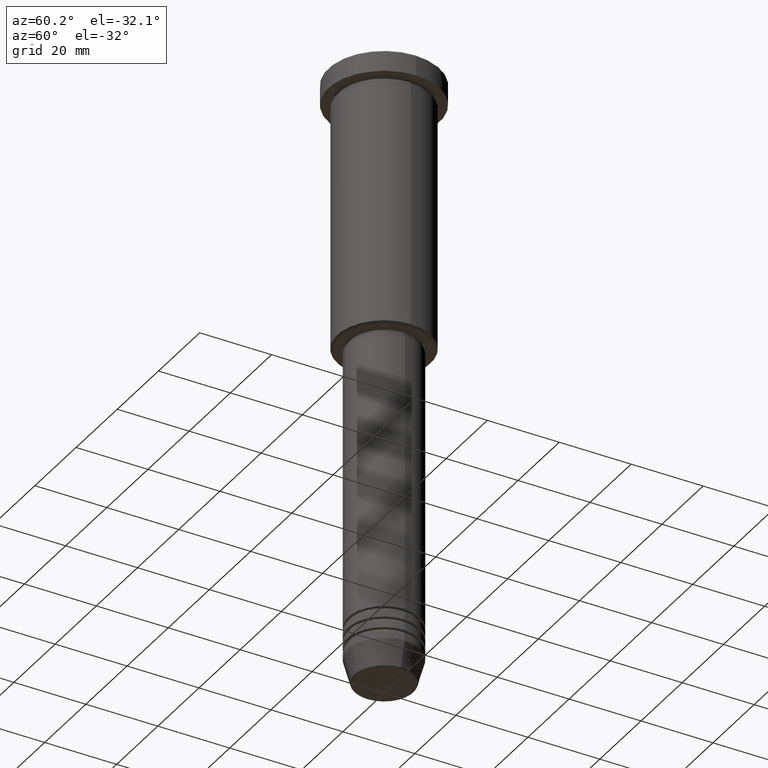
[diagram: clean part render]
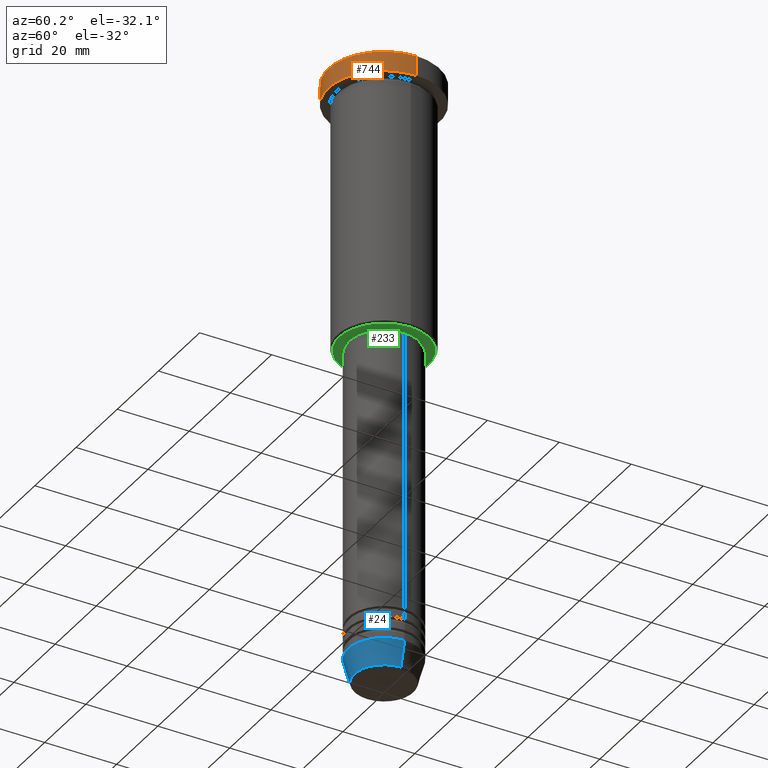
[diagram: same view with three faces highlighted in distinct colors, each labeled with its STEP entity id]
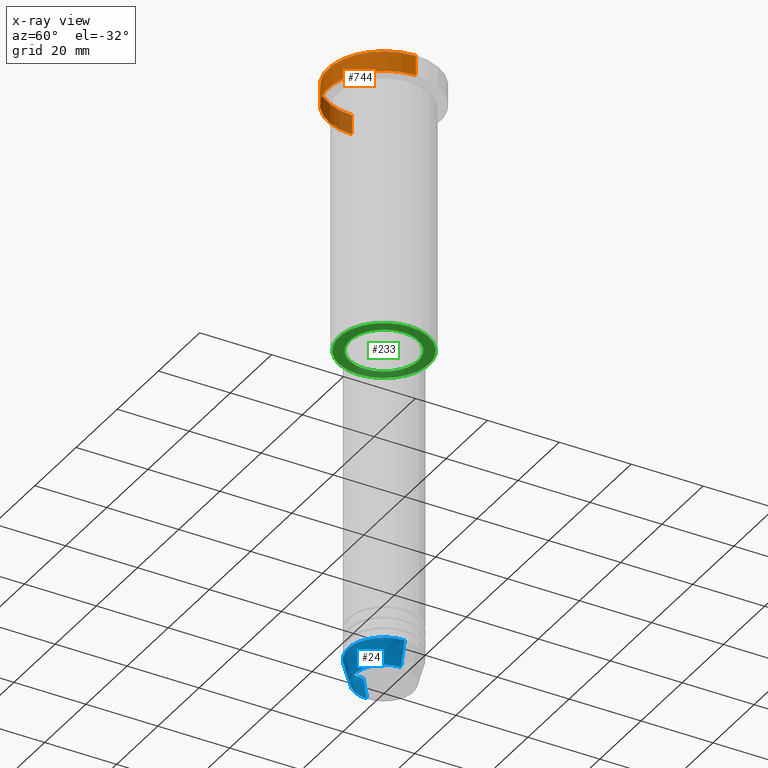
[diagram: x-ray of the same camera — body ghosted, the three highlighted faces saturated]
A machine part, auxiliary view with three faces highlighted in distinct colors.
The next image is the same camera in x-ray (body ghosted, the three faces saturated) — at least one of them is partly hidden behind the body in this view.
Their STEP definitions:

[orange] entity #744 — the highlighted cylindrical surface (partial cylindrical patch) has radius 15.5 mm, axis along (-0, -0, 1).
#4 = ORIENTED_EDGE ( 'NONE', *, *, #17, .T. ) ;
#17 = EDGE_CURVE ( 'NONE', #898, #645, #658, .T. ) ;
#19 = LINE ( 'NONE', #670, #857 ) ;
#53 = AXIS2_PLACEMENT_3D ( 'NONE', #203, #1021, #747 ) ;
#70 = CARTESIAN_POINT ( 'NONE',  ( -15.50000000000000000, 1.898202538678397557E-15, -5.999999999999995559 ) ) ;
#88 = FACE_OUTER_BOUND ( 'NONE', #759, .T. ) ;
#203 = CARTESIAN_POINT ( 'NONE',  ( 0.000000000000000000, 0.000000000000000000, -0.5000000000000125455 ) ) ;
#268 = DIRECTION ( 'NONE',  ( 1.000000000000000000, 0.000000000000000000, 0.000000000000000000 ) ) ;
#289 = ORIENTED_EDGE ( 'NONE', *, *, #860, .F. ) ;
#364 = VECTOR ( 'NONE', #667, 1000.000000000000000 ) ;
#494 = DIRECTION ( 'NONE',  ( -0.000000000000000000, -0.000000000000000000, 1.000000000000000000 ) ) ;
#560 = CARTESIAN_POINT ( 'NONE',  ( 0.000000000000000000, 0.000000000000000000, 0.000000000000000000 ) ) ;
#567 = AXIS2_PLACEMENT_3D ( 'NONE', #1025, #1111, #268 ) ;
#597 = AXIS2_PLACEMENT_3D ( 'NONE', #560, #838, #652 ) ;
#645 = VERTEX_POINT ( 'NONE', #718 ) ;
#652 = DIRECTION ( 'NONE',  ( 1.000000000000000000, 0.000000000000000000, 0.000000000000000000 ) ) ;
#654 = VERTEX_POINT ( 'NONE', #1153 ) ;
#658 = LINE ( 'NONE', #937, #364 ) ;
#667 = DIRECTION ( 'NONE',  ( -0.000000000000000000, -0.000000000000000000, 1.000000000000000000 ) ) ;
#670 = CARTESIAN_POINT ( 'NONE',  ( -15.50000000000000000, 1.898202538678397557E-15, 0.000000000000000000 ) ) ;
#714 = ORIENTED_EDGE ( 'NONE', *, *, #787, .T. ) ;
#718 = CARTESIAN_POINT ( 'NONE',  ( 15.50000000000000000, 0.000000000000000000, -0.5000000000000125455 ) ) ;
#727 = EDGE_CURVE ( 'NONE', #1018, #898, #781, .T. ) ;
#744 = ADVANCED_FACE ( 'NONE', ( #88 ), #753, .T. ) ;
#747 = DIRECTION ( 'NONE',  ( 1.000000000000000000, 0.000000000000000000, 0.000000000000000000 ) ) ;
#753 = CYLINDRICAL_SURFACE ( 'NONE', #597, 15.50000000000000000 ) ;
#759 = EDGE_LOOP ( 'NONE', ( #289, #955, #4, #714 ) ) ;
#781 = CIRCLE ( 'NONE', #567, 15.50000000000000000 ) ;
#787 = EDGE_CURVE ( 'NONE', #645, #654, #1052, .T. ) ;
#838 = DIRECTION ( 'NONE',  ( -0.000000000000000000, -0.000000000000000000, 1.000000000000000000 ) ) ;
#857 = VECTOR ( 'NONE', #494, 1000.000000000000000 ) ;
#860 = EDGE_CURVE ( 'NONE', #1018, #654, #19, .T. ) ;
#898 = VERTEX_POINT ( 'NONE', #949 ) ;
#937 = CARTESIAN_POINT ( 'NONE',  ( 15.50000000000000000, 0.000000000000000000, 0.000000000000000000 ) ) ;
#949 = CARTESIAN_POINT ( 'NONE',  ( 15.50000000000000000, 0.000000000000000000, -5.999999999999995559 ) ) ;
#955 = ORIENTED_EDGE ( 'NONE', *, *, #727, .T. ) ;
#1018 = VERTEX_POINT ( 'NONE', #70 ) ;
#1021 = DIRECTION ( 'NONE',  ( 0.000000000000000000, 0.000000000000000000, -1.000000000000000000 ) ) ;
#1025 = CARTESIAN_POINT ( 'NONE',  ( 0.000000000000000000, 0.000000000000000000, -5.999999999999995559 ) ) ;
#1052 = CIRCLE ( 'NONE', #53, 15.50000000000000000 ) ;
#1111 = DIRECTION ( 'NONE',  ( -0.000000000000000000, -0.000000000000000000, 1.000000000000000000 ) ) ;
#1153 = CARTESIAN_POINT ( 'NONE',  ( -15.50000000000000000, 1.898202538678397557E-15, -0.5000000000000125455 ) ) ;

[blue] entity #24 — the highlighted conical surface has half-angle 15 deg.
#24 = ADVANCED_FACE ( 'NONE', ( #206 ), #634, .T. ) ;
#107 = AXIS2_PLACEMENT_3D ( 'NONE', #850, #386, #761 ) ;
#111 = AXIS2_PLACEMENT_3D ( 'NONE', #635, #545, #334 ) ;
#149 = CIRCLE ( 'NONE', #111, 10.00000000000000000 ) ;
#154 = EDGE_LOOP ( 'NONE', ( #1029, #602, #394, #907 ) ) ;
#206 = FACE_OUTER_BOUND ( 'NONE', #154, .T. ) ;
#300 = CIRCLE ( 'NONE', #510, 8.223655072137198374 ) ;
#334 = DIRECTION ( 'NONE',  ( 1.000000000000000000, 0.000000000000000000, 0.000000000000000000 ) ) ;
#336 = LINE ( 'NONE', #546, #856 ) ;
#386 = DIRECTION ( 'NONE',  ( -0.000000000000000000, -0.000000000000000000, 1.000000000000000000 ) ) ;
#394 = ORIENTED_EDGE ( 'NONE', *, *, #570, .T. ) ;
#395 = VERTEX_POINT ( 'NONE', #768 ) ;
#446 = DIRECTION ( 'NONE',  ( -0.000000000000000000, -0.000000000000000000, 1.000000000000000000 ) ) ;
#510 = AXIS2_PLACEMENT_3D ( 'NONE', #726, #446, #975 ) ;
#527 = DIRECTION ( 'NONE',  ( 0.2588190451025213501, 0.000000000000000000, 0.9659258262890680902 ) ) ;
#545 = DIRECTION ( 'NONE',  ( -0.000000000000000000, -0.000000000000000000, 1.000000000000000000 ) ) ;
#546 = CARTESIAN_POINT ( 'NONE',  ( 10.00000000000000000, 0.000000000000000000, -164.0000000000000000 ) ) ;
#570 = EDGE_CURVE ( 'NONE', #1112, #863, #336, .T. ) ;
#602 = ORIENTED_EDGE ( 'NONE', *, *, #611, .T. ) ;
#607 = VERTEX_POINT ( 'NONE', #1002 ) ;
#611 = EDGE_CURVE ( 'NONE', #395, #1112, #300, .T. ) ;
#634 = CONICAL_SURFACE ( 'NONE', #107, 10.00000000000000000, 0.2617993877991500740 ) ;
#635 = CARTESIAN_POINT ( 'NONE',  ( 0.000000000000000000, 0.000000000000000000, -164.0000000000000000 ) ) ;
#725 = CARTESIAN_POINT ( 'NONE',  ( 8.223655072137198374, 0.000000000000000000, -170.6294095225512422 ) ) ;
#726 = CARTESIAN_POINT ( 'NONE',  ( 0.000000000000000000, 0.000000000000000000, -170.6294095225512422 ) ) ;
#761 = DIRECTION ( 'NONE',  ( 1.000000000000000000, 0.000000000000000000, 0.000000000000000000 ) ) ;
#768 = CARTESIAN_POINT ( 'NONE',  ( -8.223655072137198374, 1.115877042642912448E-15, -170.6294095225512422 ) ) ;
#850 = CARTESIAN_POINT ( 'NONE',  ( 0.000000000000000000, 0.000000000000000000, -164.0000000000000000 ) ) ;
#856 = VECTOR ( 'NONE', #527, 1000.000000000000000 ) ;
#859 = CARTESIAN_POINT ( 'NONE',  ( 10.00000000000000000, 0.000000000000000000, -164.0000000000000000 ) ) ;
#863 = VERTEX_POINT ( 'NONE', #859 ) ;
#907 = ORIENTED_EDGE ( 'NONE', *, *, #1094, .F. ) ;
#975 = DIRECTION ( 'NONE',  ( 1.000000000000000000, 0.000000000000000000, 0.000000000000000000 ) ) ;
#980 = DIRECTION ( 'NONE',  ( -0.2588190451025213501, 3.169619151431772337E-17, 0.9659258262890680902 ) ) ;
#999 = LINE ( 'NONE', #1079, #1167 ) ;
#1002 = CARTESIAN_POINT ( 'NONE',  ( -10.00000000000000000, 1.224646799147353256E-15, -164.0000000000000000 ) ) ;
#1029 = ORIENTED_EDGE ( 'NONE', *, *, #1121, .F. ) ;
#1079 = CARTESIAN_POINT ( 'NONE',  ( -10.00000000000000000, 1.224646799147353256E-15, -164.0000000000000000 ) ) ;
#1094 = EDGE_CURVE ( 'NONE', #607, #863, #149, .T. ) ;
#1112 = VERTEX_POINT ( 'NONE', #725 ) ;
#1121 = EDGE_CURVE ( 'NONE', #395, #607, #999, .T. ) ;
#1167 = VECTOR ( 'NONE', #980, 1000.000000000000000 ) ;

[green] entity #233 — the highlighted planar face has unit normal (0, 0, -1).
#27 = ORIENTED_EDGE ( 'NONE', *, *, #1038, .T. ) ;
#41 = EDGE_CURVE ( 'NONE', #537, #524, #738, .T. ) ;
#46 = CARTESIAN_POINT ( 'NONE',  ( 9.500000000000000000, 0.000000000000000000, -76.00000000000000000 ) ) ;
#66 = DIRECTION ( 'NONE',  ( 1.000000000000000000, 0.000000000000000000, 0.000000000000000000 ) ) ;
#74 = ORIENTED_EDGE ( 'NONE', *, *, #41, .T. ) ;
#83 = CARTESIAN_POINT ( 'NONE',  ( 0.000000000000000000, 0.000000000000000000, -76.00000000000000000 ) ) ;
#143 = CARTESIAN_POINT ( 'NONE',  ( 0.000000000000000000, 0.000000000000000000, -76.00000000000000000 ) ) ;
#233 = ADVANCED_FACE ( 'NONE', ( #426, #1147 ), #1059, .T. ) ;
#298 = AXIS2_PLACEMENT_3D ( 'NONE', #579, #646, #676 ) ;
#329 = EDGE_LOOP ( 'NONE', ( #74, #27 ) ) ;
#344 = AXIS2_PLACEMENT_3D ( 'NONE', #1076, #703, #66 ) ;
#404 = VERTEX_POINT ( 'NONE', #737 ) ;
#426 = FACE_OUTER_BOUND ( 'NONE', #329, .T. ) ;
#428 = CIRCLE ( 'NONE', #344, 9.500000000000000000 ) ;
#458 = DIRECTION ( 'NONE',  ( -0.000000000000000000, -0.000000000000000000, 1.000000000000000000 ) ) ;
#509 = EDGE_LOOP ( 'NONE', ( #699, #1162 ) ) ;
#524 = VERTEX_POINT ( 'NONE', #595 ) ;
#537 = VERTEX_POINT ( 'NONE', #881 ) ;
#579 = CARTESIAN_POINT ( 'NONE',  ( 0.000000000000000000, 0.000000000000000000, -76.00000000000000000 ) ) ;
#595 = CARTESIAN_POINT ( 'NONE',  ( -12.50000000000003908, 1.561424668912877675E-15, -76.00000000000000000 ) ) ;
#601 = EDGE_CURVE ( 'NONE', #1027, #404, #428, .T. ) ;
#608 = DIRECTION ( 'NONE',  ( -1.000000000000000000, 0.000000000000000000, -0.000000000000000000 ) ) ;
#646 = DIRECTION ( 'NONE',  ( 0.000000000000000000, 0.000000000000000000, -1.000000000000000000 ) ) ;
#676 = DIRECTION ( 'NONE',  ( -1.000000000000000000, 0.000000000000000000, 0.000000000000000000 ) ) ;
#699 = ORIENTED_EDGE ( 'NONE', *, *, #601, .T. ) ;
#703 = DIRECTION ( 'NONE',  ( -0.000000000000000000, -0.000000000000000000, 1.000000000000000000 ) ) ;
#705 = EDGE_CURVE ( 'NONE', #404, #1027, #963, .T. ) ;
#737 = CARTESIAN_POINT ( 'NONE',  ( -9.500000000000000000, 1.163414459189985485E-15, -76.00000000000000000 ) ) ;
#738 = CIRCLE ( 'NONE', #298, 12.50000000000003908 ) ;
#784 = CIRCLE ( 'NONE', #1055, 12.50000000000003908 ) ;
#810 = CARTESIAN_POINT ( 'NONE',  ( 0.000000000000000000, 13.00000000000000000, -76.00000000000000000 ) ) ;
#833 = DIRECTION ( 'NONE',  ( 1.000000000000000000, 0.000000000000000000, 0.000000000000000000 ) ) ;
#881 = CARTESIAN_POINT ( 'NONE',  ( 12.50000000000003908, 0.000000000000000000, -76.00000000000000000 ) ) ;
#963 = CIRCLE ( 'NONE', #978, 9.500000000000000000 ) ;
#972 = DIRECTION ( 'NONE',  ( 0.000000000000000000, 0.000000000000000000, -1.000000000000000000 ) ) ;
#978 = AXIS2_PLACEMENT_3D ( 'NONE', #83, #458, #833 ) ;
#1027 = VERTEX_POINT ( 'NONE', #46 ) ;
#1032 = AXIS2_PLACEMENT_3D ( 'NONE', #810, #972, #608 ) ;
#1038 = EDGE_CURVE ( 'NONE', #524, #537, #784, .T. ) ;
#1055 = AXIS2_PLACEMENT_3D ( 'NONE', #143, #1148, #1166 ) ;
#1059 = PLANE ( 'NONE',  #1032 ) ;
#1076 = CARTESIAN_POINT ( 'NONE',  ( 0.000000000000000000, 0.000000000000000000, -76.00000000000000000 ) ) ;
#1147 = FACE_BOUND ( 'NONE', #509, .T. ) ;
#1148 = DIRECTION ( 'NONE',  ( 0.000000000000000000, 0.000000000000000000, -1.000000000000000000 ) ) ;
#1162 = ORIENTED_EDGE ( 'NONE', *, *, #705, .T. ) ;
#1166 = DIRECTION ( 'NONE',  ( -1.000000000000000000, 0.000000000000000000, 0.000000000000000000 ) ) ;